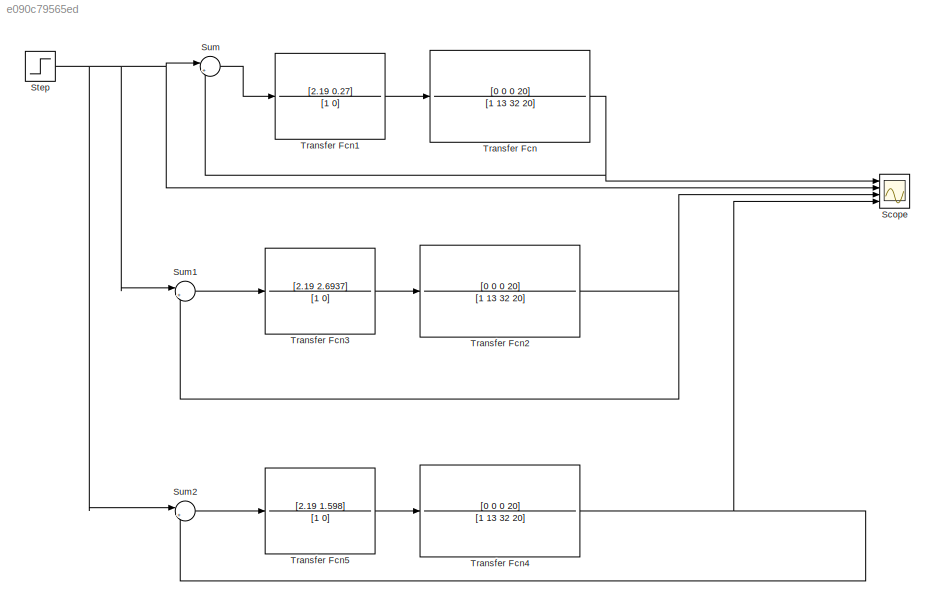
MODEL slx_e090c79565ed
KIND model
CONFIG AbsTol = auto
CONFIG EnableMultiTasking = off
CONFIG FixedStep = auto
CONFIG MaxStep = auto
CONFIG MinStep = auto
CONFIG RelTol = 1e-3
CONFIG SampleTimeConstraint = Unconstrained
CONFIG Solver = VariableStepAuto
CONFIG SolverName = VariableStepAuto
CONFIG StartTime = 0.0
CONFIG StopTime = 30
BLOCK [Scope] Scope
  Floating = off
  NumInputPorts = 4
  Ports = [4]
  ScopeSpecificationString = Simulink.scopes.TimeScopeBlockCfg('CurrentConfiguration', extmgr.ConfigurationSet(extmgr.Configuration('Core','General UI',true),extmgr.Configuration('Core','Source UI',true),extmgr.Configuration('Sources','WiredSimulink',true),extmgr.Configuration('Visuals','Time Domain',true,'SerializedDisplays',{struct('MinYLimReal','-0.17018','MaxYLimReal','1.53158','YLabelReal','','MinYLimMag','0.00000','MaxY...<+1433ch>
BLOCK [Step] Step
  SampleTime = 0
BLOCK [Sum] Sum
  Inputs = |+-
  Ports = [2, 1]
BLOCK [Sum] Sum1
  Inputs = |+-
  Ports = [2, 1]
BLOCK [Sum] Sum2
  Inputs = |+-
  Ports = [2, 1]
BLOCK [TransferFcn] Transfer Fcn
  Denominator = [1 13 32 20]
  Numerator = [0 0 0 20]
BLOCK [TransferFcn] Transfer Fcn1
  Denominator = [1 0]
  Numerator = [2.19 0.27]
BLOCK [TransferFcn] Transfer Fcn2
  Denominator = [1 13 32 20]
  Numerator = [0 0 0 20]
BLOCK [TransferFcn] Transfer Fcn3
  Denominator = [1 0]
  Numerator = [2.19 2.6937]
BLOCK [TransferFcn] Transfer Fcn4
  Denominator = [1 13 32 20]
  Numerator = [0 0 0 20]
BLOCK [TransferFcn] Transfer Fcn5
  Denominator = [1 0]
  Numerator = [2.19 1.598]
NET Step:1 -> Scope:2, Sum1:1, Sum2:1, Sum:1
LINE Sum1:1 -> Transfer Fcn3:1
LINE Sum2:1 -> Transfer Fcn5:1
LINE Sum:1 -> Transfer Fcn1:1
LINE Transfer Fcn1:1 -> Transfer Fcn:1
NET Transfer Fcn2:1 -> Scope:3, Sum1:2
LINE Transfer Fcn3:1 -> Transfer Fcn2:1
NET Transfer Fcn4:1 -> Scope:4, Sum2:2
LINE Transfer Fcn5:1 -> Transfer Fcn4:1
NET Transfer Fcn:1 -> Scope:1, Sum:2
note: NET lines group one-source signal fan-out (src -> all destinations, sorted); 1:1 wires keep LINE
